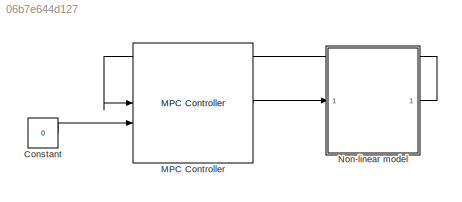
MODEL slx_06b7e644d127
KIND model
CONFIG AbsTol = auto
CONFIG EnableMultiTasking = off
CONFIG FixedStep = auto
CONFIG MaxStep = auto
CONFIG MinStep = auto
CONFIG RelTol = 1e-3
CONFIG SampleTimeConstraint = Unconstrained
CONFIG SolverName = VariableStepAuto
CONFIG StartTime = 0.0
CONFIG StopTime = 5
BLOCK [Constant] Constant
  Value = 0
BLOCK [Reference] MPC Controller  REF=mpclib/MPC Controller  (lib defined in mdl_ae329e0e0455)
  SCDEnableBlockLinearizationSpecification = on
  SourceBlock = mpclib/MPC Controller
  SourceType = MPC
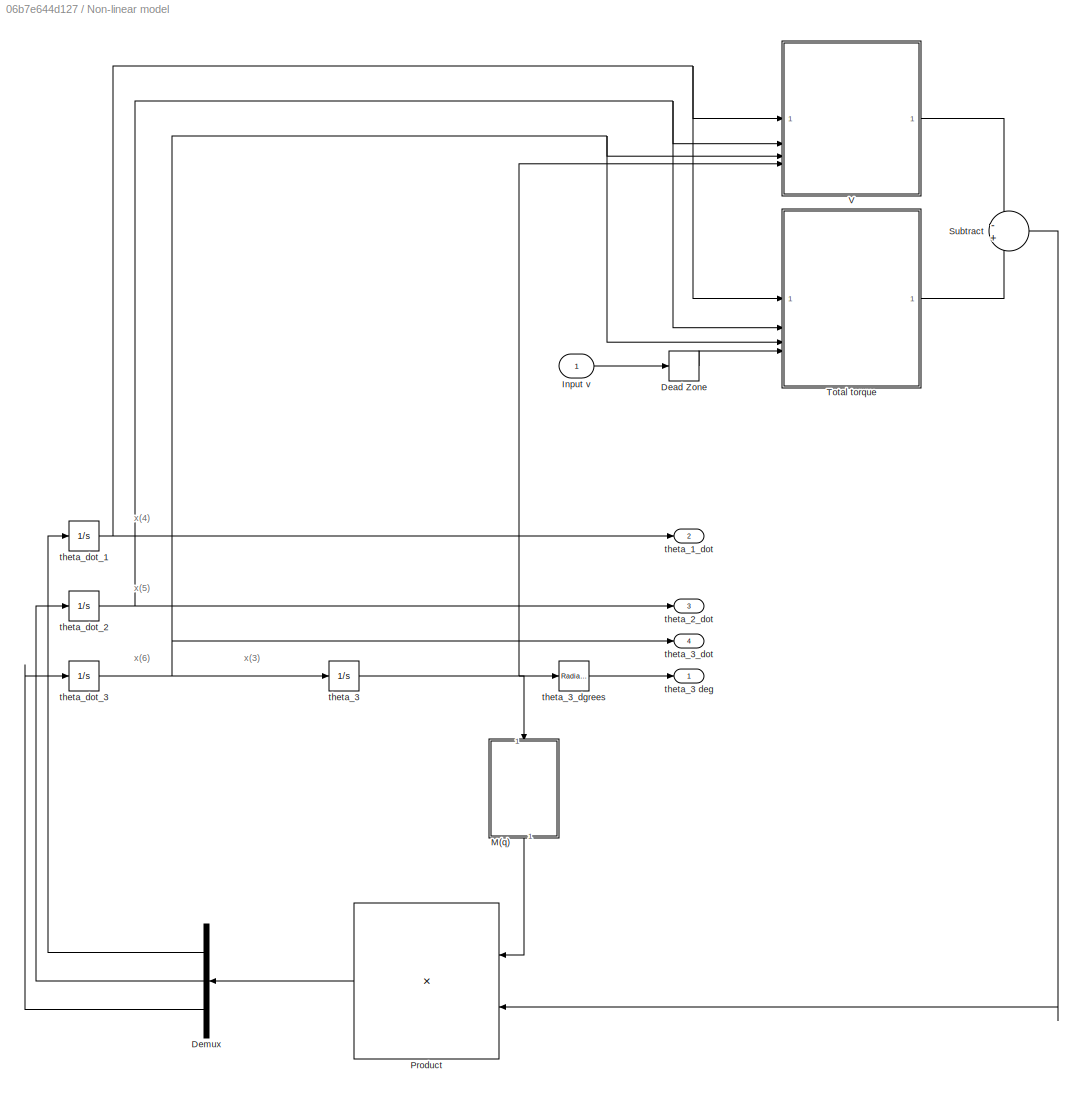
BLOCK [SubSystem] Non-linear model
BLOCK [DeadZone] Non-linear model/Dead Zone
  LowerValue = -1.5
  UpperValue = 1.5
BLOCK [Demux] Non-linear model/Demux
  NameLocation = top
  Outputs = 3
BLOCK [Inport] Non-linear model/Input v
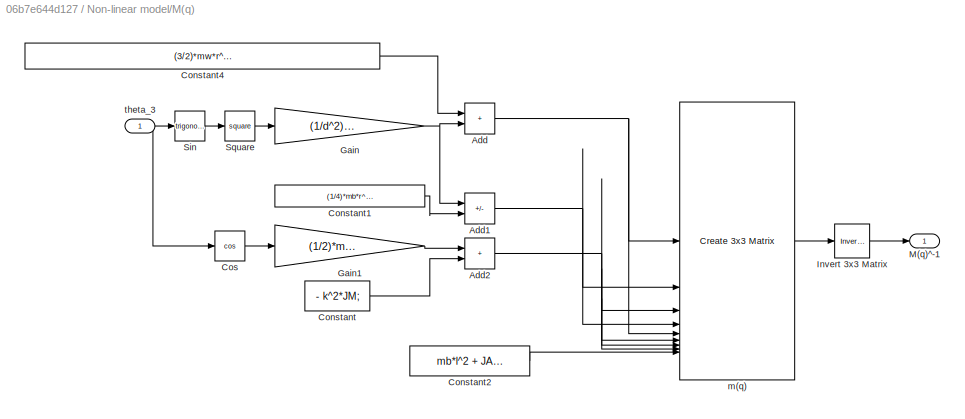
BLOCK [SubSystem] Non-linear model/M(q)
  NameLocation = left
BLOCK [Sum] Non-linear model/M(q)/Add
  IconShape = rectangular
BLOCK [Sum] Non-linear model/M(q)/Add1
  IconShape = rectangular
  Inputs = -+
BLOCK [Sum] Non-linear model/M(q)/Add2
  IconShape = rectangular
BLOCK [Constant] Non-linear model/M(q)/Constant
  Value = - k^2*JM;
BLOCK [Constant] Non-linear model/M(q)/Constant1
  Value = (1/4)*mb*r^2  - JB*r^2/d^2;
BLOCK [Constant] Non-linear model/M(q)/Constant2
  Value = mb*l^2 + JA + 2*k^2*JM;
BLOCK [Constant] Non-linear model/M(q)/Constant4
  Value = (3/2)*mw*r^2 + (1/4)*mb*r^2 + k^2*JM + JB*r^2/d^2;
BLOCK [Trigonometry] Non-linear model/M(q)/Cos
  Operator = cos
BLOCK [Gain] Non-linear model/M(q)/Gain
  Gain = (1/d^2)*l^2*r^2*mb
BLOCK [Gain] Non-linear model/M(q)/Gain1
  Gain = (1/2)*mb*l*r
BLOCK [Reference] Non-linear model/M(q)/Invert 3x3 Matrix  REF=aerolibutil/Invert 
3x3 Matrix
  SourceBlock = aerolibutil/Invert \n3x3 Matrix
  SourceType = Invert 3x3 Matrix
BLOCK [Outport] Non-linear model/M(q)/M(q)^-1
BLOCK [Trigonometry] Non-linear model/M(q)/Sin
BLOCK [Math] Non-linear model/M(q)/Square
  Operator = square
BLOCK [Reference] Non-linear model/M(q)/m(q)  REF=sharedutil/Create 3x3 Matrix
  SourceBlock = sharedutil/Create 3x3 Matrix
  SourceType = Create 3x3 Matrix
BLOCK [Inport] Non-linear model/M(q)/theta_3
BLOCK [Product] Non-linear model/Product
  Multiplication = Matrix(*)
  NameLocation = top
BLOCK [Sum] Non-linear model/Subtract
  Inputs = -+
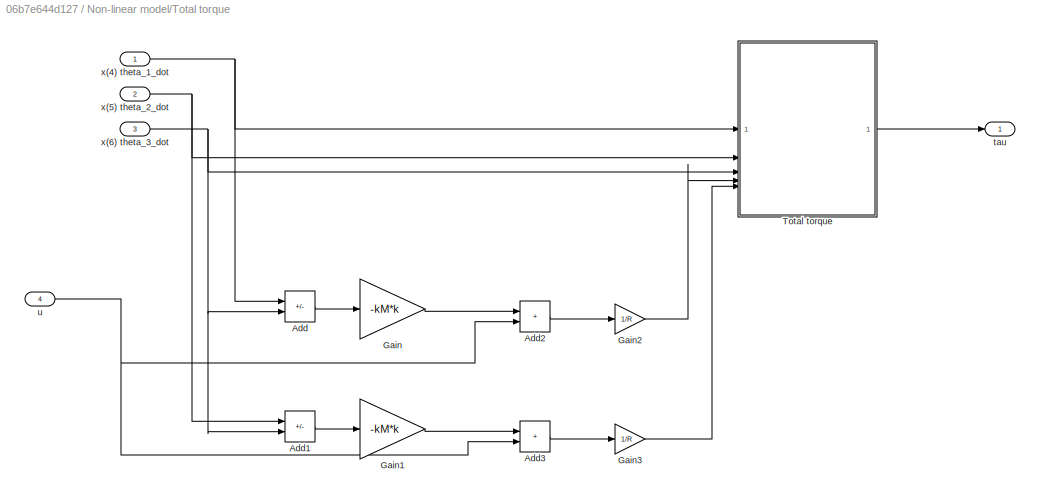
BLOCK [SubSystem] Non-linear model/Total torque
BLOCK [Sum] Non-linear model/Total torque/Add
  IconShape = rectangular
  Inputs = +-
BLOCK [Sum] Non-linear model/Total torque/Add1
  IconShape = rectangular
  Inputs = +-
BLOCK [Sum] Non-linear model/Total torque/Add2
  IconShape = rectangular
BLOCK [Sum] Non-linear model/Total torque/Add3
  IconShape = rectangular
BLOCK [Gain] Non-linear model/Total torque/Gain
  Gain = -kM*k
BLOCK [Gain] Non-linear model/Total torque/Gain1
  Gain = -kM*k
BLOCK [Gain] Non-linear model/Total torque/Gain2
  Gain = 1/R
BLOCK [Gain] Non-linear model/Total torque/Gain3
  Gain = 1/R
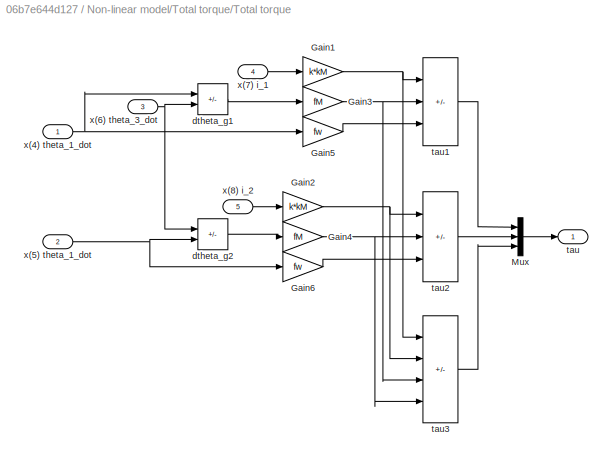
BLOCK [SubSystem] Non-linear model/Total torque/Total torque
BLOCK [Gain] Non-linear model/Total torque/Total torque/Gain1
  Gain = k*kM
BLOCK [Gain] Non-linear model/Total torque/Total torque/Gain2
  Gain = k*kM
BLOCK [Gain] Non-linear model/Total torque/Total torque/Gain3
  Gain = fM
BLOCK [Gain] Non-linear model/Total torque/Total torque/Gain4
  Gain = fM
BLOCK [Gain] Non-linear model/Total torque/Total torque/Gain5
  Gain = fw
BLOCK [Gain] Non-linear model/Total torque/Total torque/Gain6
  Gain = fw
BLOCK [Mux] Non-linear model/Total torque/Total torque/Mux
  DisplayOption = bar
  Inputs = 3
BLOCK [Sum] Non-linear model/Total torque/Total torque/dtheta_g1
  IconShape = rectangular
  Inputs = +-
BLOCK [Sum] Non-linear model/Total torque/Total torque/dtheta_g2
  IconShape = rectangular
  Inputs = -+
BLOCK [Outport] Non-linear model/Total torque/Total torque/tau
BLOCK [Sum] Non-linear model/Total torque/Total torque/tau1
  IconShape = rectangular
  Inputs = +--
BLOCK [Sum] Non-linear model/Total torque/Total torque/tau2
  IconShape = rectangular
  Inputs = +--
BLOCK [Sum] Non-linear model/Total torque/Total torque/tau3
  IconShape = rectangular
  Inputs = --++
BLOCK [Inport] Non-linear model/Total torque/Total torque/x(4) theta_1_dot
BLOCK [Inport] Non-linear model/Total torque/Total torque/x(5) theta_1_dot
  Port = 2
BLOCK [Inport] Non-linear model/Total torque/Total torque/x(6) theta_3_dot
  Port = 3
BLOCK [Inport] Non-linear model/Total torque/Total torque/x(7) i_1
  Port = 4
BLOCK [Inport] Non-linear model/Total torque/Total torque/x(8) i_2
  Port = 5
BLOCK [Outport] Non-linear model/Total torque/tau
BLOCK [Inport] Non-linear model/Total torque/u
  Port = 4
BLOCK [Inport] Non-linear model/Total torque/x(4) theta_1_dot
BLOCK [Inport] Non-linear model/Total torque/x(5) theta_2_dot
  Port = 2
BLOCK [Inport] Non-linear model/Total torque/x(6) theta_3_dot
  Port = 3
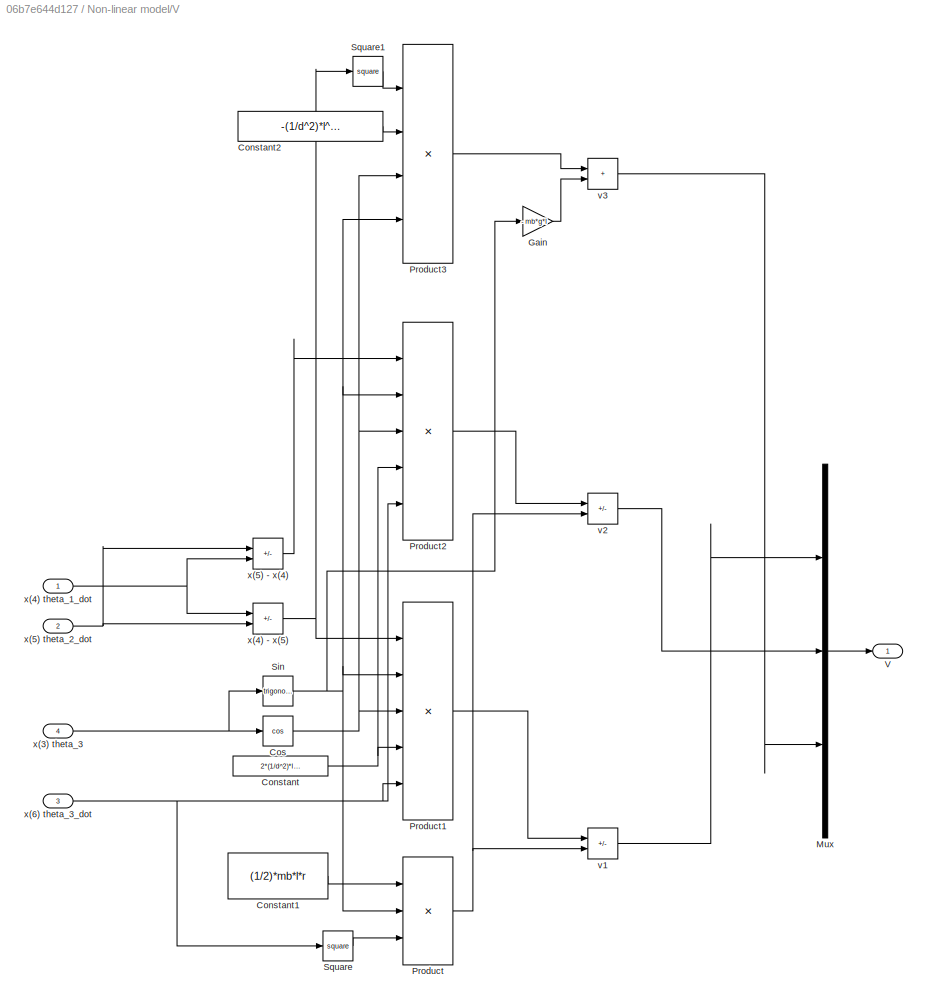
BLOCK [SubSystem] Non-linear model/V
BLOCK [Constant] Non-linear model/V/Constant
  Value = 2*(1/d^2)*l^2*r^2*mb
BLOCK [Constant] Non-linear model/V/Constant1
  Value = (1/2)*mb*l*r
BLOCK [Constant] Non-linear model/V/Constant2
  Value = -(1/d^2)*l^2*r^2*mb
BLOCK [Trigonometry] Non-linear model/V/Cos
  Operator = cos
BLOCK [Gain] Non-linear model/V/Gain
  Gain = - mb*g*l
BLOCK [Mux] Non-linear model/V/Mux
  DisplayOption = bar
  Inputs = 3
BLOCK [Product] Non-linear model/V/Product
  Inputs = 3
BLOCK [Product] Non-linear model/V/Product1
  Inputs = 5
BLOCK [Product] Non-linear model/V/Product2
  Inputs = 5
BLOCK [Product] Non-linear model/V/Product3
  Inputs = 4
BLOCK [Trigonometry] Non-linear model/V/Sin
BLOCK [Math] Non-linear model/V/Square
  Operator = square
BLOCK [Math] Non-linear model/V/Square1
  Operator = square
BLOCK [Outport] Non-linear model/V/V
BLOCK [Sum] Non-linear model/V/v1
  IconShape = rectangular
  Inputs = +-
BLOCK [Sum] Non-linear model/V/v2
  IconShape = rectangular
  Inputs = +-
BLOCK [Sum] Non-linear model/V/v3
  IconShape = rectangular
BLOCK [Inport] Non-linear model/V/x(3) theta_3
  NameLocation = top
  Port = 4
BLOCK [Sum] Non-linear model/V/x(4) - x(5)
  IconShape = rectangular
  Inputs = +-
BLOCK [Inport] Non-linear model/V/x(4) theta_1_dot
BLOCK [Sum] Non-linear model/V/x(5) - x(4)
  IconShape = rectangular
  Inputs = +-
BLOCK [Inport] Non-linear model/V/x(5) theta_2_dot
  Port = 2
BLOCK [Inport] Non-linear model/V/x(6) theta_3_dot
  Port = 3
BLOCK [Outport] Non-linear model/theta_1_dot
  Port = 2
BLOCK [Outport] Non-linear model/theta_2_dot
  Port = 3
BLOCK [Integrator] Non-linear model/theta_3
  WrappedStateLowerValue = -pi/2
  WrappedStateUpperValue = pi/2
BLOCK [Outport] Non-linear model/theta_3 deg
BLOCK [Reference] Non-linear model/theta_3_dgrees  REF=simulink_extras/Transformations/Radians
to Degrees
  SourceBlock = simulink_extras/Transformations/Radians\nto Degrees
  SourceType = RadiansToDegrees
BLOCK [Outport] Non-linear model/theta_3_dot
  Port = 4
BLOCK [Integrator] Non-linear model/theta_dot_1
BLOCK [Integrator] Non-linear model/theta_dot_2
BLOCK [Integrator] Non-linear model/theta_dot_3
ANNOTATION Non-linear model: x(3)
ANNOTATION Non-linear model: x(4)
ANNOTATION Non-linear model: x(5)
ANNOTATION Non-linear model: x(6)
LINE Constant:1 -> MPC Controller:2
LINE MPC Controller:1 -> Non-linear model:1
LINE Non-linear model/Dead Zone:1 -> Non-linear model/Total torque:4
LINE Non-linear model/Demux:1 -> Non-linear model/theta_dot_1:1
LINE Non-linear model/Demux:2 -> Non-linear model/theta_dot_2:1
LINE Non-linear model/Demux:3 -> Non-linear model/theta_dot_3:1
LINE Non-linear model/Input v:1 -> Non-linear model/Dead Zone:1
NET Non-linear model/M(q)/Add1:1 -> Non-linear model/M(q)/m(q):2, Non-linear model/M(q)/m(q):4
NET Non-linear model/M(q)/Add2:1 -> Non-linear model/M(q)/m(q):3, Non-linear model/M(q)/m(q):6, Non-linear model/M(q)/m(q):7, Non-linear model/M(q)/m(q):8
NET Non-linear model/M(q)/Add:1 -> Non-linear model/M(q)/m(q):1, Non-linear model/M(q)/m(q):5
LINE Non-linear model/M(q)/Constant1:1 -> Non-linear model/M(q)/Add1:2
LINE Non-linear model/M(q)/Constant2:1 -> Non-linear model/M(q)/m(q):9
LINE Non-linear model/M(q)/Constant4:1 -> Non-linear model/M(q)/Add:1
LINE Non-linear model/M(q)/Constant:1 -> Non-linear model/M(q)/Add2:2
LINE Non-linear model/M(q)/Cos:1 -> Non-linear model/M(q)/Gain1:1
LINE Non-linear model/M(q)/Gain1:1 -> Non-linear model/M(q)/Add2:1
NET Non-linear model/M(q)/Gain:1 -> Non-linear model/M(q)/Add1:1, Non-linear model/M(q)/Add:2
LINE Non-linear model/M(q)/Invert 3x3 Matrix:1 -> Non-linear model/M(q)/M(q)^-1:1
LINE Non-linear model/M(q)/Sin:1 -> Non-linear model/M(q)/Square:1
LINE Non-linear model/M(q)/Square:1 -> Non-linear model/M(q)/Gain:1
LINE Non-linear model/M(q)/m(q):1 -> Non-linear model/M(q)/Invert 3x3 Matrix:1
NET Non-linear model/M(q)/theta_3:1 -> Non-linear model/M(q)/Cos:1, Non-linear model/M(q)/Sin:1
LINE Non-linear model/M(q):1 -> Non-linear model/Product:1
LINE Non-linear model/Product:1 -> Non-linear model/Demux:1
LINE Non-linear model/Subtract:1 -> Non-linear model/Product:2
LINE Non-linear model/Total torque/Add1:1 -> Non-linear model/Total torque/Gain1:1
LINE Non-linear model/Total torque/Add2:1 -> Non-linear model/Total torque/Gain2:1
LINE Non-linear model/Total torque/Add3:1 -> Non-linear model/Total torque/Gain3:1
LINE Non-linear model/Total torque/Add:1 -> Non-linear model/Total torque/Gain:1
LINE Non-linear model/Total torque/Gain1:1 -> Non-linear model/Total torque/Add3:1
LINE Non-linear model/Total torque/Gain2:1 -> Non-linear model/Total torque/Total torque:4
LINE Non-linear model/Total torque/Gain3:1 -> Non-linear model/Total torque/Total torque:5
LINE Non-linear model/Total torque/Gain:1 -> Non-linear model/Total torque/Add2:1
NET Non-linear model/Total torque/Total torque/Gain1:1 -> Non-linear model/Total torque/Total torque/tau1:1, Non-linear model/Total torque/Total torque/tau3:1
NET Non-linear model/Total torque/Total torque/Gain2:1 -> Non-linear model/Total torque/Total torque/tau2:1, Non-linear model/Total torque/Total torque/tau3:2
NET Non-linear model/Total torque/Total torque/Gain3:1 -> Non-linear model/Total torque/Total torque/tau1:2, Non-linear model/Total torque/Total torque/tau3:3
NET Non-linear model/Total torque/Total torque/Gain4:1 -> Non-linear model/Total torque/Total torque/tau2:2, Non-linear model/Total torque/Total torque/tau3:4
LINE Non-linear model/Total torque/Total torque/Gain5:1 -> Non-linear model/Total torque/Total torque/tau1:3
LINE Non-linear model/Total torque/Total torque/Gain6:1 -> Non-linear model/Total torque/Total torque/tau2:3
LINE Non-linear model/Total torque/Total torque/Mux:1 -> Non-linear model/Total torque/Total torque/tau:1
LINE Non-linear model/Total torque/Total torque/dtheta_g1:1 -> Non-linear model/Total torque/Total torque/Gain3:1
LINE Non-linear model/Total torque/Total torque/dtheta_g2:1 -> Non-linear model/Total torque/Total torque/Gain4:1
LINE Non-linear model/Total torque/Total torque/tau1:1 -> Non-linear model/Total torque/Total torque/Mux:1
LINE Non-linear model/Total torque/Total torque/tau2:1 -> Non-linear model/Total torque/Total torque/Mux:2
LINE Non-linear model/Total torque/Total torque/tau3:1 -> Non-linear model/Total torque/Total torque/Mux:3
NET Non-linear model/Total torque/Total torque/x(4) theta_1_dot:1 -> Non-linear model/Total torque/Total torque/Gain5:1, Non-linear model/Total torque/Total torque/dtheta_g1:1
NET Non-linear model/Total torque/Total torque/x(5) theta_1_dot:1 -> Non-linear model/Total torque/Total torque/Gain6:1, Non-linear model/Total torque/Total torque/dtheta_g2:2
NET Non-linear model/Total torque/Total torque/x(6) theta_3_dot:1 -> Non-linear model/Total torque/Total torque/dtheta_g1:2, Non-linear model/Total torque/Total torque/dtheta_g2:1
LINE Non-linear model/Total torque/Total torque/x(7) i_1:1 -> Non-linear model/Total torque/Total torque/Gain1:1
LINE Non-linear model/Total torque/Total torque/x(8) i_2:1 -> Non-linear model/Total torque/Total torque/Gain2:1
LINE Non-linear model/Total torque/Total torque:1 -> Non-linear model/Total torque/tau:1
NET Non-linear model/Total torque/u:1 -> Non-linear model/Total torque/Add2:2, Non-linear model/Total torque/Add3:2
NET Non-linear model/Total torque/x(4) theta_1_dot:1 -> Non-linear model/Total torque/Add:1, Non-linear model/Total torque/Total torque:1
NET Non-linear model/Total torque/x(5) theta_2_dot:1 -> Non-linear model/Total torque/Add1:1, Non-linear model/Total torque/Total torque:2
NET Non-linear model/Total torque/x(6) theta_3_dot:1 -> Non-linear model/Total torque/Add1:2, Non-linear model/Total torque/Add:2, Non-linear model/Total torque/Total torque:3
LINE Non-linear model/Total torque:1 -> Non-linear model/Subtract:2
LINE Non-linear model/V/Constant1:1 -> Non-linear model/V/Product:1
LINE Non-linear model/V/Constant2:1 -> Non-linear model/V/Product3:2
NET Non-linear model/V/Constant:1 -> Non-linear model/V/Product1:4, Non-linear model/V/Product2:4
NET Non-linear model/V/Cos:1 -> Non-linear model/V/Product1:3, Non-linear model/V/Product2:3, Non-linear model/V/Product3:3
LINE Non-linear model/V/Gain:1 -> Non-linear model/V/v3:2
LINE Non-linear model/V/Mux:1 -> Non-linear model/V/V:1
LINE Non-linear model/V/Product1:1 -> Non-linear model/V/v1:1
LINE Non-linear model/V/Product2:1 -> Non-linear model/V/v2:1
LINE Non-linear model/V/Product3:1 -> Non-linear model/V/v3:1
NET Non-linear model/V/Product:1 -> Non-linear model/V/v1:2, Non-linear model/V/v2:2
NET Non-linear model/V/Sin:1 -> Non-linear model/V/Gain:1, Non-linear model/V/Product1:2, Non-linear model/V/Product2:2, Non-linear model/V/Product3:4, Non-linear model/V/Product:2
LINE Non-linear model/V/Square1:1 -> Non-linear model/V/Product3:1
LINE Non-linear model/V/Square:1 -> Non-linear model/V/Product:3
LINE Non-linear model/V/v1:1 -> Non-linear model/V/Mux:1
LINE Non-linear model/V/v2:1 -> Non-linear model/V/Mux:2
LINE Non-linear model/V/v3:1 -> Non-linear model/V/Mux:3
NET Non-linear model/V/x(3) theta_3:1 -> Non-linear model/V/Cos:1, Non-linear model/V/Sin:1
NET Non-linear model/V/x(4) - x(5):1 -> Non-linear model/V/Product1:1, Non-linear model/V/Square1:1
NET Non-linear model/V/x(4) theta_1_dot:1 -> Non-linear model/V/x(4) - x(5):1, Non-linear model/V/x(5) - x(4):2
LINE Non-linear model/V/x(5) - x(4):1 -> Non-linear model/V/Product2:1
NET Non-linear model/V/x(5) theta_2_dot:1 -> Non-linear model/V/x(4) - x(5):2, Non-linear model/V/x(5) - x(4):1
NET Non-linear model/V/x(6) theta_3_dot:1 -> Non-linear model/V/Product1:5, Non-linear model/V/Product2:5, Non-linear model/V/Square:1
LINE Non-linear model/V:1 -> Non-linear model/Subtract:1
NET Non-linear model/theta_3:1 -> Non-linear model/M(q):1, Non-linear model/V:4, Non-linear model/theta_3_dgrees:1
LINE Non-linear model/theta_3_dgrees:1 -> Non-linear model/theta_3 deg:1
NET Non-linear model/theta_dot_1:1 -> Non-linear model/Total torque:1, Non-linear model/V:1, Non-linear model/theta_1_dot:1
NET Non-linear model/theta_dot_2:1 -> Non-linear model/Total torque:2, Non-linear model/V:2, Non-linear model/theta_2_dot:1
NET Non-linear model/theta_dot_3:1 -> Non-linear model/Total torque:3, Non-linear model/V:3, Non-linear model/theta_3:1, Non-linear model/theta_3_dot:1
LINE Non-linear model:1 -> MPC Controller:1
note: NET lines group one-source signal fan-out (src -> all destinations, sorted); 1:1 wires keep LINE
